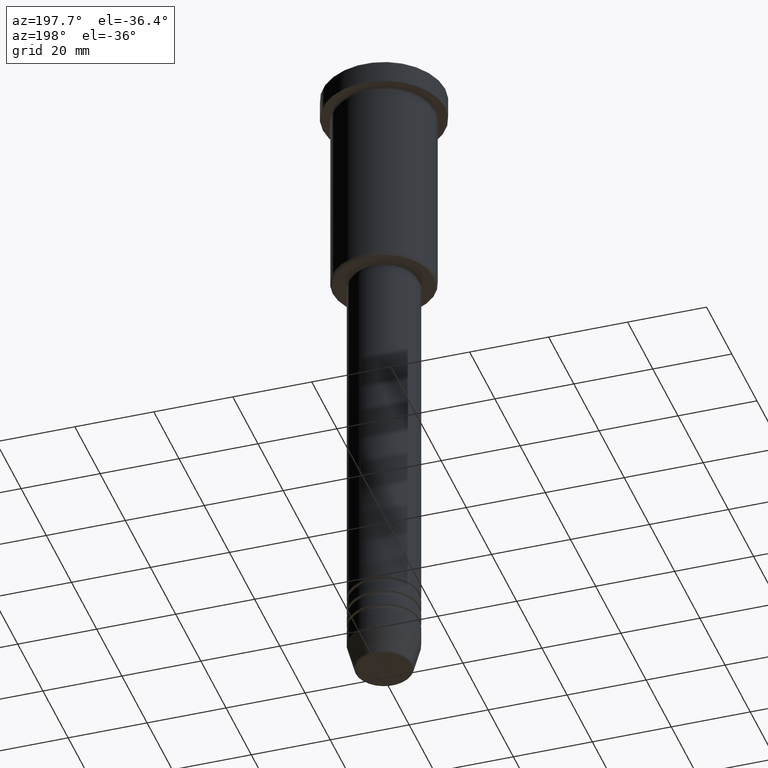
[diagram: clean part render]
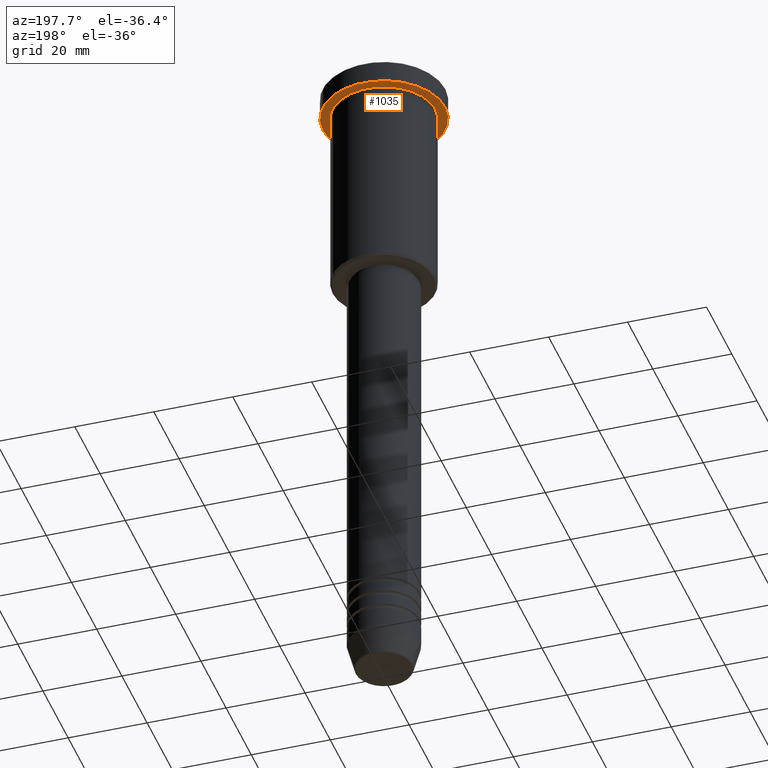
[diagram: same view with one face highlighted and labeled with its STEP entity id]
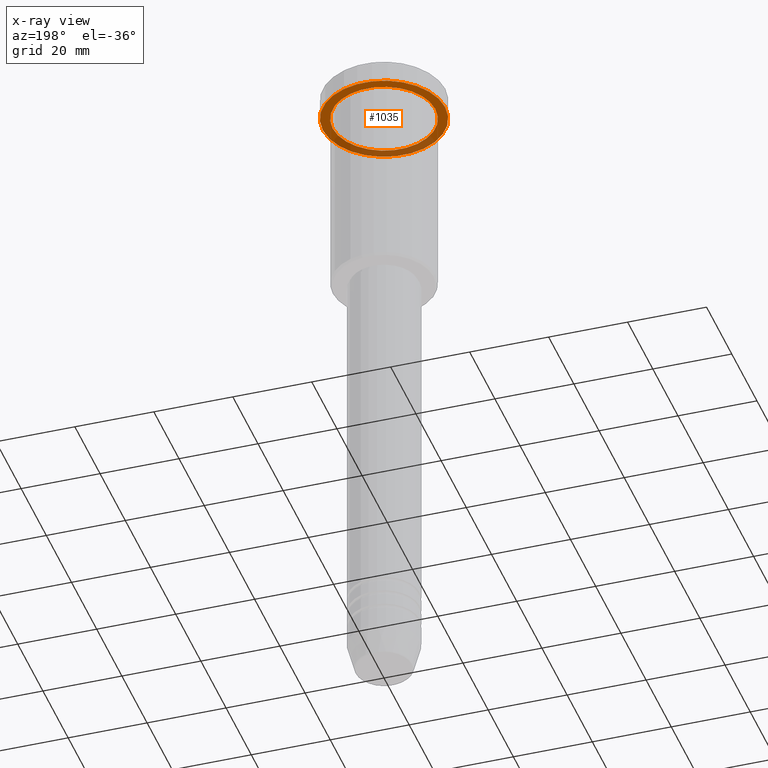
[diagram: x-ray of the same camera — body ghosted, the highlighted face saturated]
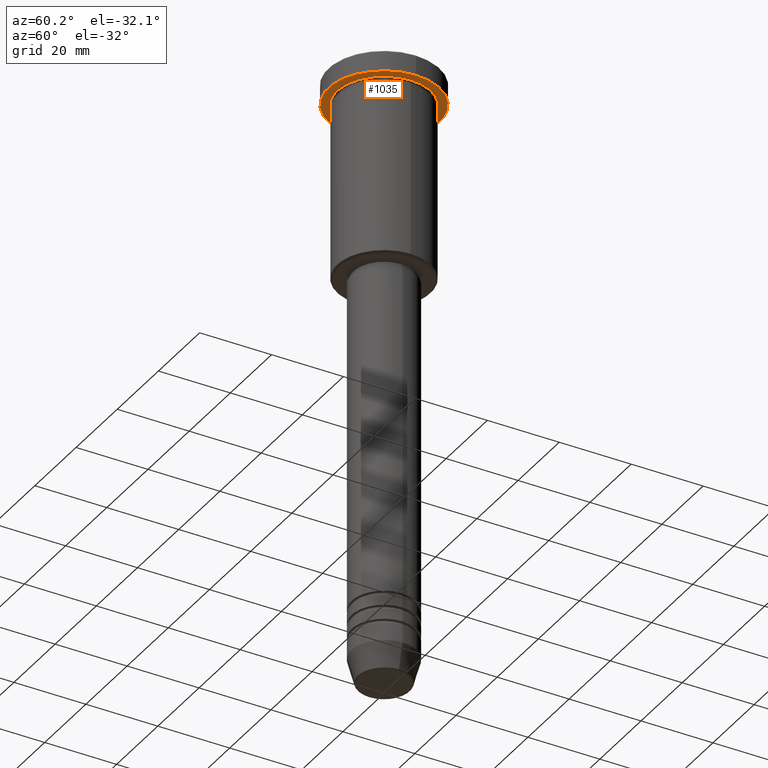
[diagram: same view with one face highlighted and labeled with its STEP entity id]
A machine part, auxiliary view. The second image highlights one B-rep face of the part: STEP entity #1035.
The next image is the same camera in x-ray: the body ghosted, the highlighted face saturated — about 31% of this face is hidden behind the body in this view.
A second angle (auxiliary view) of the same face is appended — the face is thin or edge-on in the first view.
In plain terms, the highlighted planar face has unit normal (0, 0, -1).
Its self-contained STEP definition (entity closure, byte-faithful):
#27 = DIRECTION ( 'NONE',  ( 0.000000000000000000, 0.000000000000000000, -1.000000000000000000 ) ) ;
#79 = EDGE_LOOP ( 'NONE', ( #1135, #194 ) ) ;
#81 = CARTESIAN_POINT ( 'NONE',  ( 13.00000000000000000, 1.592040838891559095E-15, -5.999999999999994671 ) ) ;
#95 = FACE_OUTER_BOUND ( 'NONE', #1062, .T. ) ;
#101 = CIRCLE ( 'NONE', #1167, 15.50000000000000000 ) ;
#110 = VERTEX_POINT ( 'NONE', #962 ) ;
#123 = DIRECTION ( 'NONE',  ( -1.000000000000000000, 0.000000000000000000, 0.000000000000000000 ) ) ;
#176 = DIRECTION ( 'NONE',  ( 1.000000000000000000, 0.000000000000000000, 0.000000000000000000 ) ) ;
#194 = ORIENTED_EDGE ( 'NONE', *, *, #454, .T. ) ;
#212 = VERTEX_POINT ( 'NONE', #81 ) ;
#215 = CARTESIAN_POINT ( 'NONE',  ( 0.000000000000000000, 15.50000000000000000, -5.999999999999995559 ) ) ;
#246 = CIRCLE ( 'NONE', #511, 13.00000000000000000 ) ;
#260 = CARTESIAN_POINT ( 'NONE',  ( -13.00000000000000000, 0.000000000000000000, -5.999999999999994671 ) ) ;
#271 = CARTESIAN_POINT ( 'NONE',  ( 0.000000000000000000, 0.000000000000000000, -5.999999999999995559 ) ) ;
#283 = AXIS2_PLACEMENT_3D ( 'NONE', #271, #996, #176 ) ;
#322 = VERTEX_POINT ( 'NONE', #260 ) ;
#333 = EDGE_CURVE ( 'NONE', #459, #110, #740, .T. ) ;
#354 = PLANE ( 'NONE',  #535 ) ;
#384 = DIRECTION ( 'NONE',  ( -0.000000000000000000, -0.000000000000000000, 1.000000000000000000 ) ) ;
#388 = CARTESIAN_POINT ( 'NONE',  ( 0.000000000000000000, 0.000000000000000000, -5.999999999999995559 ) ) ;
#438 = FACE_BOUND ( 'NONE', #79, .T. ) ;
#454 = EDGE_CURVE ( 'NONE', #212, #322, #246, .T. ) ;
#459 = VERTEX_POINT ( 'NONE', #480 ) ;
#462 = CARTESIAN_POINT ( 'NONE',  ( 0.000000000000000000, 0.000000000000000000, -5.999999999999995559 ) ) ;
#480 = CARTESIAN_POINT ( 'NONE',  ( 15.50000000000000000, 0.000000000000000000, -5.999999999999995559 ) ) ;
#486 = DIRECTION ( 'NONE',  ( -0.000000000000000000, -0.000000000000000000, 1.000000000000000000 ) ) ;
#499 = EDGE_CURVE ( 'NONE', #110, #459, #101, .T. ) ;
#511 = AXIS2_PLACEMENT_3D ( 'NONE', #462, #486, #123 ) ;
#535 = AXIS2_PLACEMENT_3D ( 'NONE', #215, #27, #574 ) ;
#574 = DIRECTION ( 'NONE',  ( -1.000000000000000000, 0.000000000000000000, -0.000000000000000000 ) ) ;
#631 = ORIENTED_EDGE ( 'NONE', *, *, #333, .F. ) ;
#681 = DIRECTION ( 'NONE',  ( 1.000000000000000000, 0.000000000000000000, 0.000000000000000000 ) ) ;
#740 = CIRCLE ( 'NONE', #283, 15.50000000000000000 ) ;
#759 = DIRECTION ( 'NONE',  ( -1.000000000000000000, 0.000000000000000000, 0.000000000000000000 ) ) ;
#806 = AXIS2_PLACEMENT_3D ( 'NONE', #388, #384, #759 ) ;
#863 = CARTESIAN_POINT ( 'NONE',  ( 0.000000000000000000, 0.000000000000000000, -5.999999999999995559 ) ) ;
#883 = DIRECTION ( 'NONE',  ( -0.000000000000000000, -0.000000000000000000, 1.000000000000000000 ) ) ;
#945 = ORIENTED_EDGE ( 'NONE', *, *, #499, .F. ) ;
#962 = CARTESIAN_POINT ( 'NONE',  ( -15.50000000000000000, 1.898202538678397557E-15, -5.999999999999995559 ) ) ;
#973 = CIRCLE ( 'NONE', #806, 13.00000000000000000 ) ;
#996 = DIRECTION ( 'NONE',  ( -0.000000000000000000, -0.000000000000000000, 1.000000000000000000 ) ) ;
#1035 = ADVANCED_FACE ( 'NONE', ( #438, #95 ), #354, .T. ) ;
#1062 = EDGE_LOOP ( 'NONE', ( #631, #945 ) ) ;
#1135 = ORIENTED_EDGE ( 'NONE', *, *, #1171, .T. ) ;
#1167 = AXIS2_PLACEMENT_3D ( 'NONE', #863, #883, #681 ) ;
#1171 = EDGE_CURVE ( 'NONE', #322, #212, #973, .T. ) ;